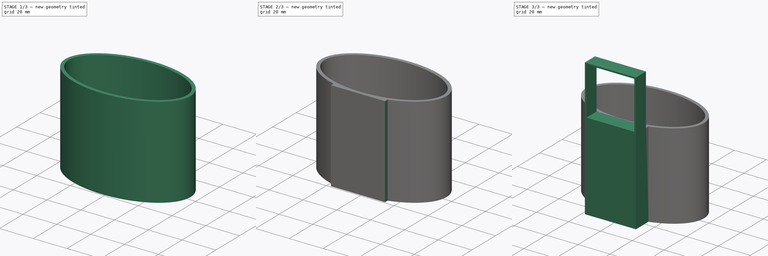
[diagram: build sequence overview — one tinted view per stage of 3, left to right]
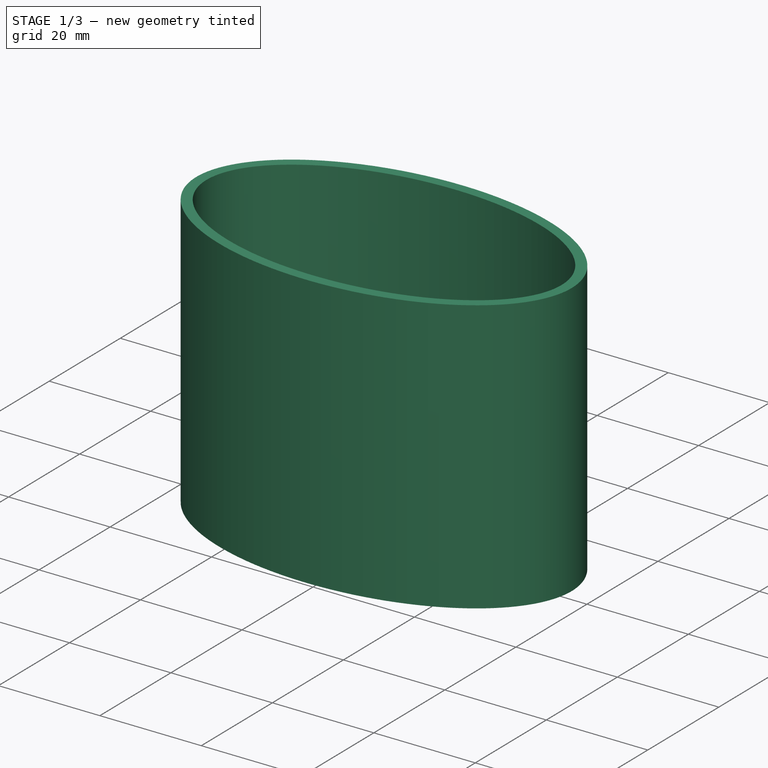
[diagram: stage 1 of 3 — iso view after this stage's code; geometry added in this stage tinted green]
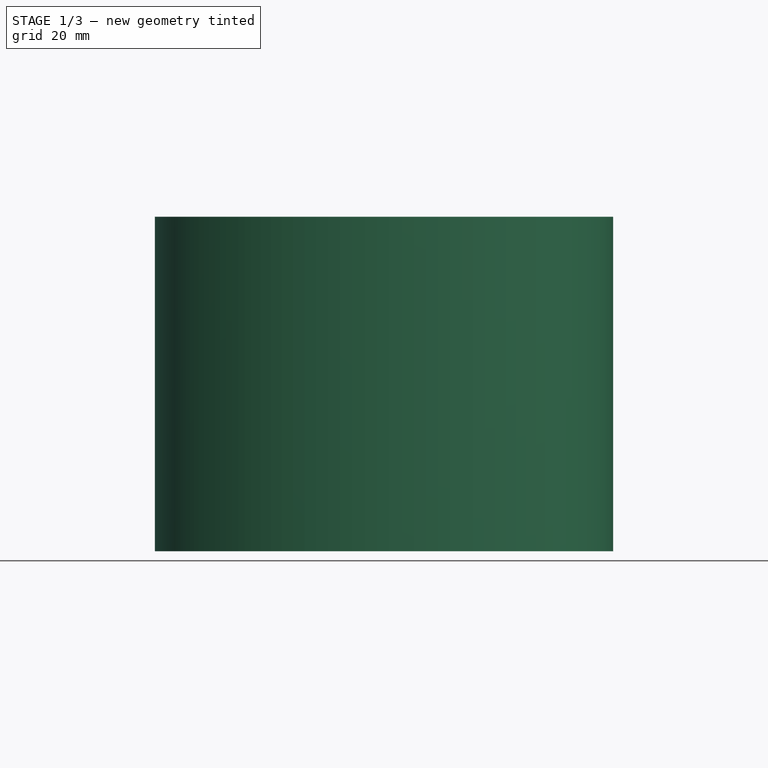
[diagram: stage 1 of 3 — front view after this stage's code; geometry added in this stage tinted green]
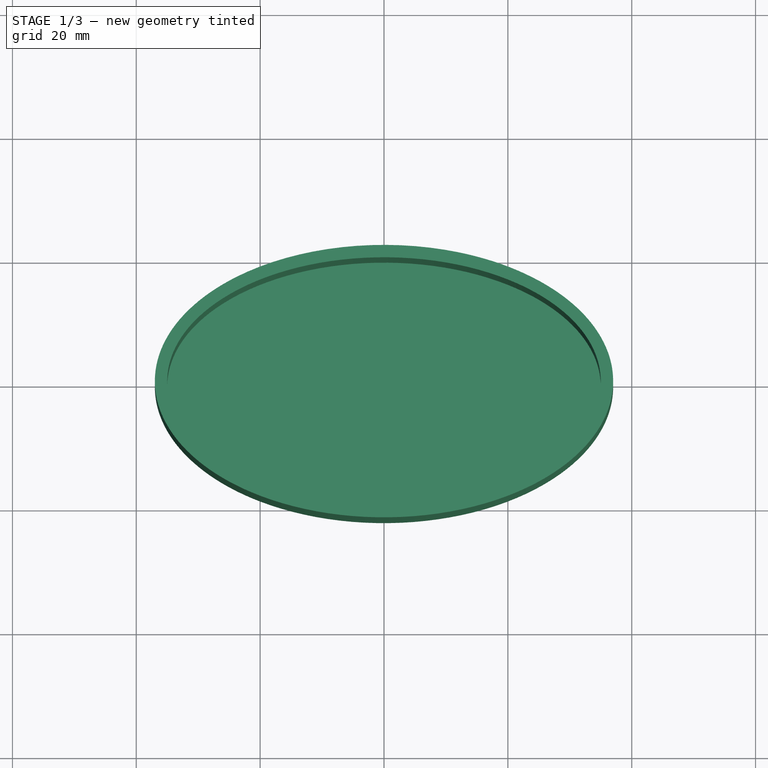
[diagram: stage 1 of 3 — top view after this stage's code; geometry added in this stage tinted green]
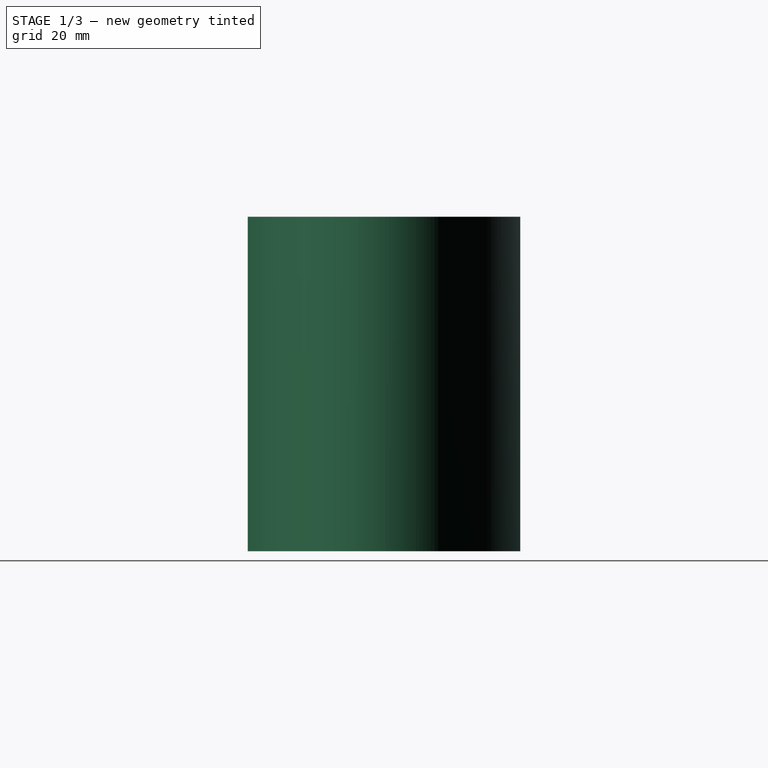
[diagram: stage 1 of 3 — right view after this stage's code; geometry added in this stage tinted green]
FCSTD DOCUMENT  (FreeCAD 1.0R39109 (Git))
Label: 01_Body
License: All rights reserved
LicenseURL: https://en.wikipedia.org/wiki/All_rights_reserved
objects: Sketcher::SketchObject×5, PartDesign::Pad×4, PartDesign::Pocket×1, PartDesign::Body×1
note: 26 computed .brp shape members not serialized (recipe doc carries the construction recipe); baked Part::Feature solids carry a one-line shape summary decoded from their .brp

FEATURE [Sketcher::SketchObject] Sketch
  ArcFitTolerance = 1e-06
  AttachmentSupport = -> [XY_Plane]
  FullyConstrained = true
  MakeInternals = false
  MapMode = 5
  sketch-geometry (5):
    g0: Ellipse CenterX=0 CenterY=0 CenterZ=0 NormalX=0 NormalY=0 NormalZ=1 MajorRadius=37 MinorRadius=22 AngleXU=-3.14159
    g1: LineSegment [constr] StartX=-37 StartY=0 StartZ=0 EndX=37 EndY=0 EndZ=0
    g2: LineSegment [constr] StartX=0 StartY=-22 StartZ=0 EndX=0 EndY=22 EndZ=0
    g3: GeomPoint [constr] X=-29.7489 Y=0 Z=0
    g4: GeomPoint [constr] X=29.7489 Y=0 Z=0
  constraints (5):
    c: InternalAlignment(g1-g4 -> g0) x4
    c: Distance(g0,g1) = 37
    c: Angle(g1) = 0
    c: Distance(g0,g2) = 22
    c: Coincident(g0,g-1)
FEATURE [PartDesign::Pad] Pad
  Direction = (0,0,1)
  Length = 4
  Length2 = 10
  Profile = -> Sketch
  ReferenceAxis = -> Sketch [N_Axis]
  Refine = true
  Suppressed = false
  Type = 0
FEATURE [Sketcher::SketchObject] Sketch001
  ArcFitTolerance = 1e-06
  AttachmentSupport = -> [Pad]
  FullyConstrained = true
  MakeInternals = false
  MapMode = 5
  Placement = pos=(0,0,4) rot=(0,0,1;0rad)
  sketch-geometry (10):
    g0: Ellipse CenterX=0 CenterY=0 CenterZ=0 NormalX=0 NormalY=0 NormalZ=1 MajorRadius=37 MinorRadius=22 AngleXU=-3.14159
    g1: LineSegment [constr] StartX=-37 StartY=-2.21568e-10 StartZ=0 EndX=37 EndY=2.21568e-10 EndZ=0
    g2: LineSegment [constr] StartX=1.31791e-10 StartY=-22 StartZ=0 EndX=-1.31791e-10 EndY=22 EndZ=0
    g3: GeomPoint [constr] X=-29.7489 Y=-1.78179e-10 Z=0
    g4: GeomPoint [constr] X=29.7489 Y=1.78211e-10 Z=0
    g5: Ellipse CenterX=0 CenterY=0 CenterZ=0 NormalX=0 NormalY=0 NormalZ=1 MajorRadius=35 MinorRadius=20 AngleXU=3.14159
    g6: LineSegment [constr] StartX=-35 StartY=1.974e-13 StartZ=0 EndX=35 EndY=-1.974e-13 EndZ=0
    g7: LineSegment [constr] StartX=-1.128e-13 StartY=-20 StartZ=0 EndX=1.128e-13 EndY=20 EndZ=0
    g8: GeomPoint [constr] X=-28.7228 Y=1.62e-13 Z=0
    g9: GeomPoint [constr] X=28.7228 Y=-1.621e-13 Z=0
  constraints (10):
    c: InternalAlignment(g1-g4 -> g0) x4
    c: Distance(g0,g1) = 37
    c: Angle(g1) = 0
    c: Distance(g0,g2) = 22
    c: Coincident(g0,g-1)
    c: InternalAlignment(g6-g9 -> g5) x4
    c: Distance(g5,g6) = 35
    c: Angle(g6) = 0
    c: Distance(g5,g7) = 20
    c: Coincident(g5,g0)
FEATURE [PartDesign::Pad] Pad001
  BaseFeature = -> Pad
  Direction = (0,0,1)
  Length = 50
  Length2 = 10
  Profile = -> Sketch001
  ReferenceAxis = -> Sketch001 [N_Axis]
  Refine = true
  Suppressed = false
  Type = 0
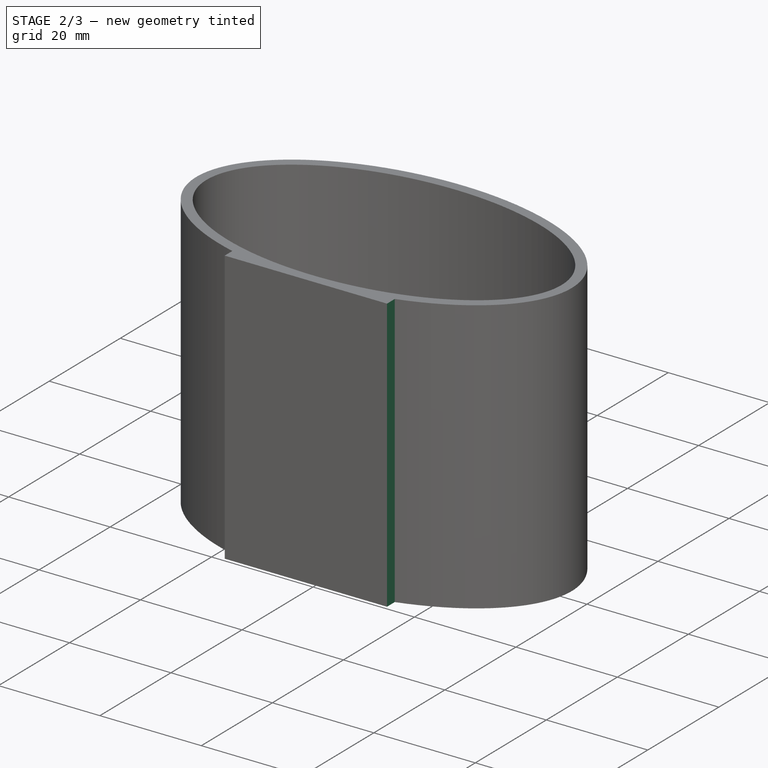
[diagram: stage 2 of 3 — iso view after this stage's code; geometry added in this stage tinted green]
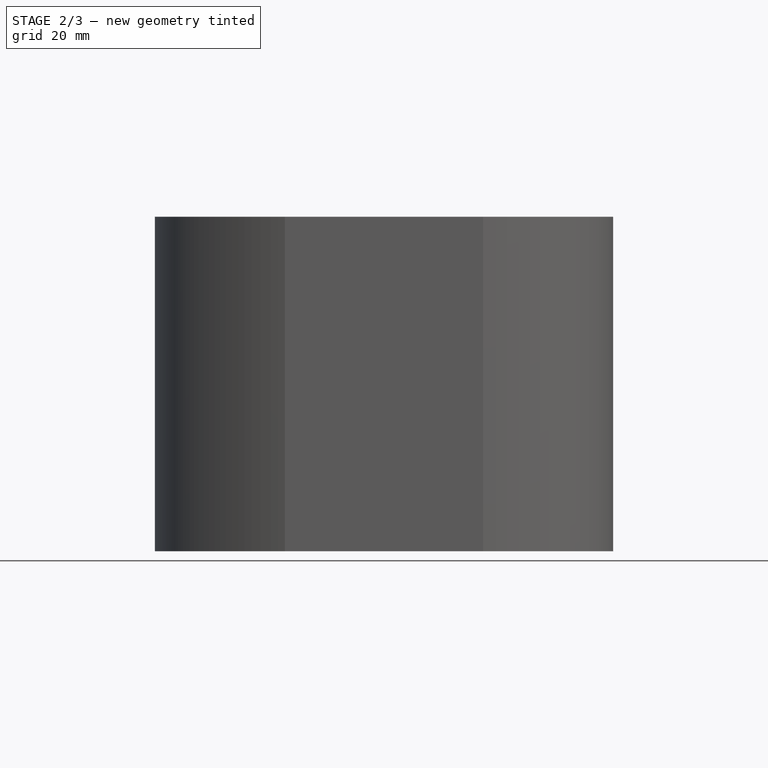
[diagram: stage 2 of 3 — front view after this stage's code; geometry added in this stage tinted green]
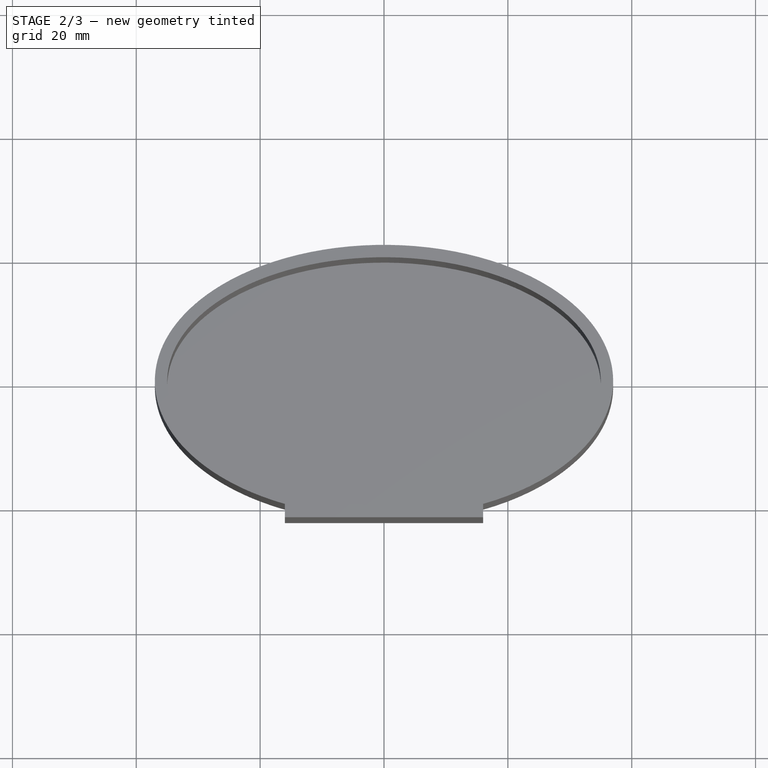
[diagram: stage 2 of 3 — top view after this stage's code; geometry added in this stage tinted green]
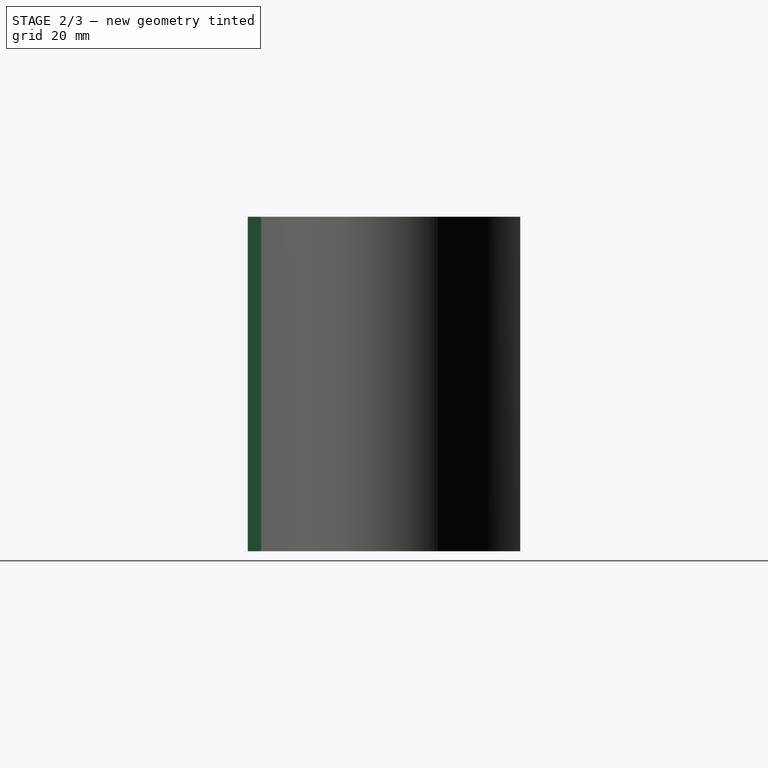
[diagram: stage 2 of 3 — right view after this stage's code; geometry added in this stage tinted green]
FEATURE [Sketcher::SketchObject] Sketch002
  ArcFitTolerance = 1e-06
  AttachmentSupport = -> [Pad001]
  FullyConstrained = true
  MakeInternals = false
  MapMode = 5
  Placement = pos=(0,0,0) rot=(1,0,0;3.14159rad)
  sketch-geometry (8):
    g0: LineSegment StartX=-16 StartY=22 StartZ=0 EndX=16 EndY=22 EndZ=0
    g1: ArcOfEllipse CenterX=0 CenterY=0 CenterZ=0 NormalX=0 NormalY=0 NormalZ=1 MajorRadius=37 MinorRadius=22 AngleXU=-3.14159 StartAngle=4.2652 EndAngle=5.15958
    g2: LineSegment [constr] StartX=-37 StartY=-1.8e-15 StartZ=0 EndX=37 EndY=1.8e-15 EndZ=0
    g3: LineSegment [constr] StartX=1.1e-15 StartY=-22 StartZ=0 EndX=-1.1e-15 EndY=22 EndZ=0
    g4: GeomPoint [constr] X=-29.7489 Y=-1.5e-15 Z=0
    g5: GeomPoint [constr] X=29.7489 Y=1.5e-15 Z=0
    g6: LineSegment StartX=-16 StartY=22 StartZ=0 EndX=-16 EndY=19.8367 EndZ=0
    g7: LineSegment StartX=16 StartY=22 StartZ=0 EndX=16 EndY=19.8367 EndZ=0
  constraints (15):
    c: Distance(g0) = 32
    c: Horizontal(g0)
    c: DistanceY(g-1,g0) = 22
    c: DistanceX(g0,g-1) = 16
    c: InternalAlignment(g2-g5 -> g1) x4
    c: Coincident(g1,g-1)
    c: Coincident(g6,g0)
    c: Coincident(g6,g1)
    c: Vertical(g6)
    c: Coincident(g7,g0)
    c: Coincident(g7,g1)
    c: Vertical(g7)
    c: DistanceX(g2,g1) = 37
    c: DistanceY(g1,g3) = 22
    c: Angle(g2,g-1) = 0
FEATURE [PartDesign::Pad] Pad002
  BaseFeature = -> Pad001
  Direction = (0,0,-1)
  Length = 54
  Length2 = 10
  Profile = -> Sketch002
  ReferenceAxis = -> Sketch002 [N_Axis]
  Refine = true
  Reversed = true
  Suppressed = false
  Type = 0
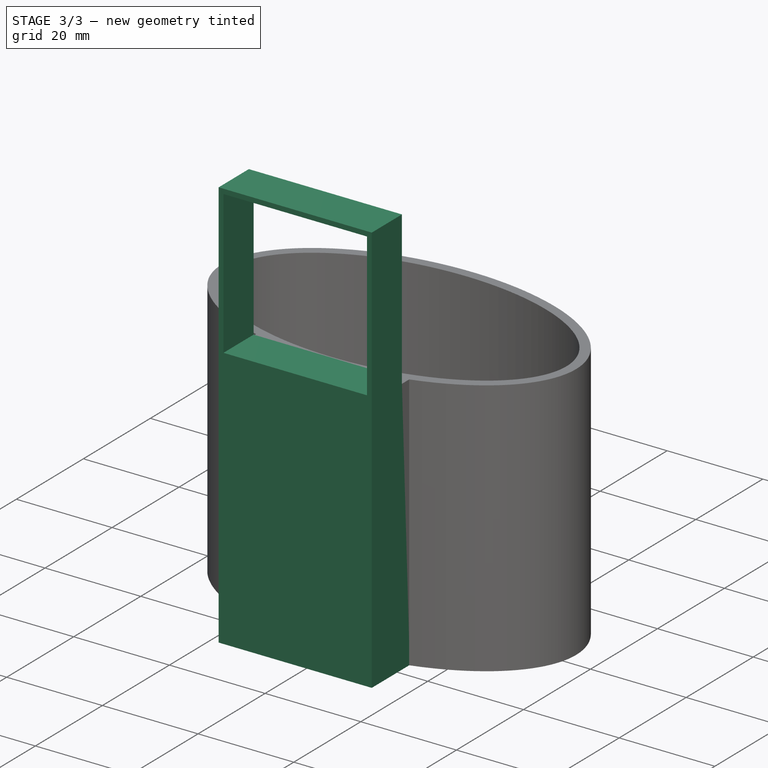
[diagram: stage 3 of 3 — iso view after this stage's code; geometry added in this stage tinted green]
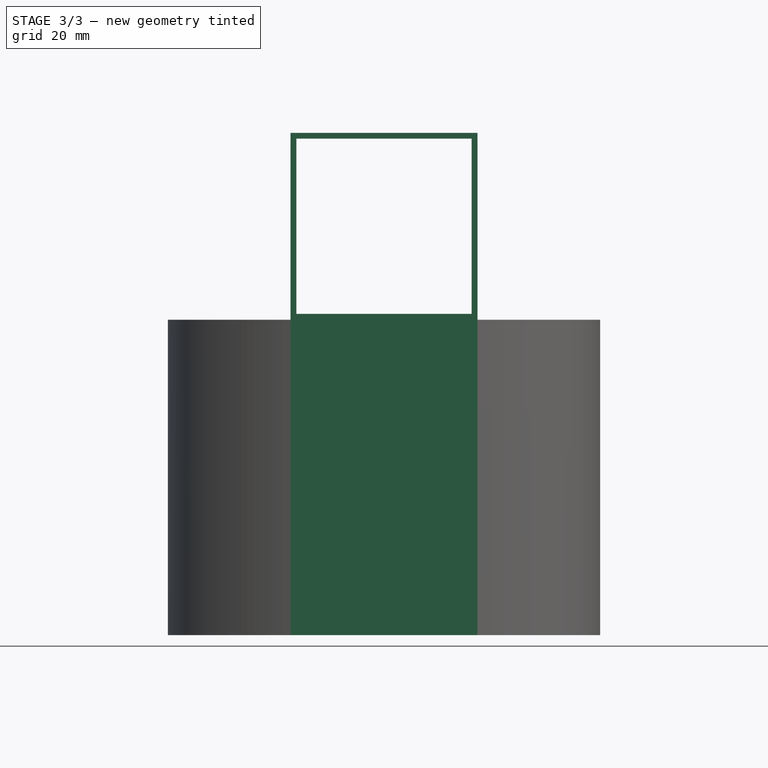
[diagram: stage 3 of 3 — front view after this stage's code; geometry added in this stage tinted green]
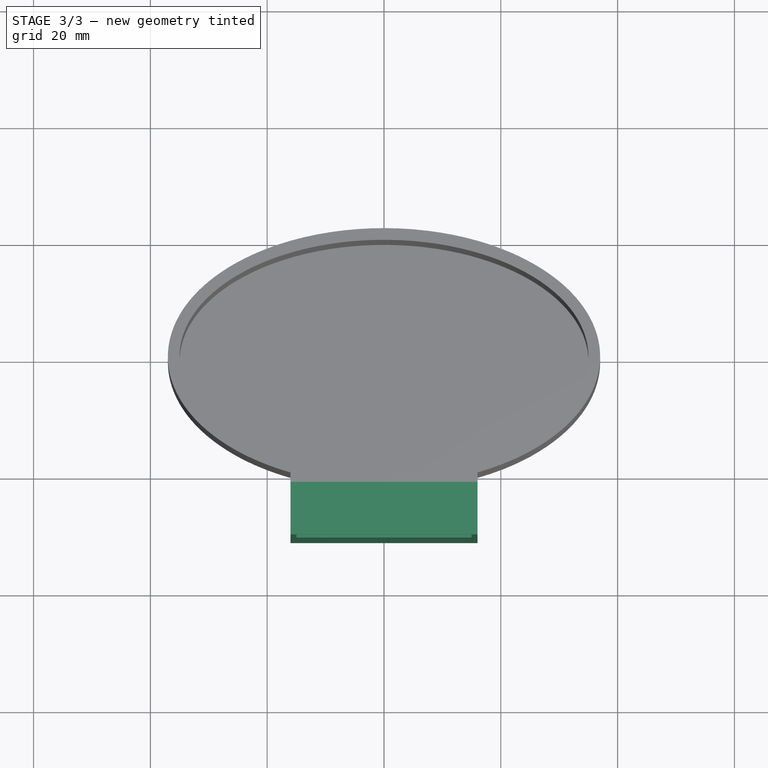
[diagram: stage 3 of 3 — top view after this stage's code; geometry added in this stage tinted green]
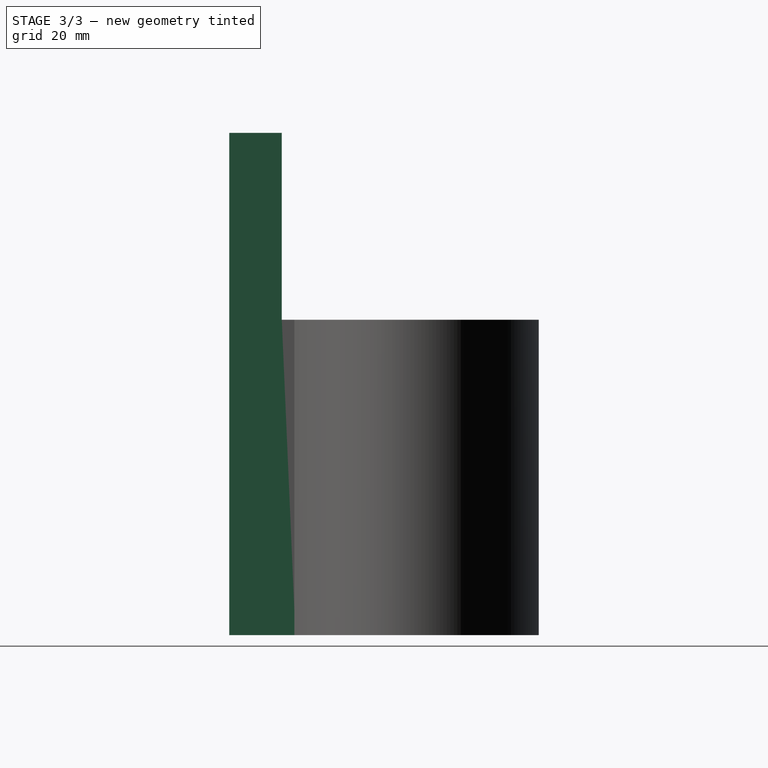
[diagram: stage 3 of 3 — right view after this stage's code; geometry added in this stage tinted green]
FEATURE [Sketcher::SketchObject] Sketch003
  ArcFitTolerance = 1e-06
  AttachmentSupport = -> [Pad002]
  FullyConstrained = true
  MakeInternals = false
  MapMode = 5
  Placement = pos=(0,0,0) rot=(1,0,0;3.14159rad)
  sketch-geometry (4):
    g0: LineSegment StartX=-16 StartY=22 StartZ=0 EndX=16 EndY=22 EndZ=0
    g1: LineSegment StartX=16 StartY=22 StartZ=0 EndX=16 EndY=31 EndZ=0
    g2: LineSegment StartX=16 StartY=31 StartZ=0 EndX=-16 EndY=31 EndZ=0
    g3: LineSegment StartX=-16 StartY=31 StartZ=0 EndX=-16 EndY=22 EndZ=0
  constraints (12):
    c: Distance(g0) = 32
    c: Horizontal(g0)
    c: Distance(g1) = 9
    c: Vertical(g1)
    c: Coincident(g1,g0)
    c: Distance(g2) = 32
    c: Horizontal(g2)
    c: Coincident(g2,g1)
    c: Coincident(g3,g2)
    c: Coincident(g3,g0)
    c: DistanceY(g-1,g0) = 22
    c: DistanceX(g0,g-1) = 16
FEATURE [PartDesign::Pad] Pad003
  BaseFeature = -> Pad002
  Direction = (0,0,-1)
  Length = 86
  Length2 = 10
  Profile = -> Sketch003
  ReferenceAxis = -> Sketch003 [N_Axis]
  Refine = true
  Reversed = true
  Suppressed = false
  Type = 0
FEATURE [Sketcher::SketchObject] Sketch004
  ArcFitTolerance = 1e-06
  AttachmentSupport = -> [Pad003]
  FullyConstrained = true
  MakeInternals = false
  MapMode = 5
  Placement = pos=(0,-22,0) rot=(0,0.707107,0.707107;3.14159rad)
  sketch-geometry (4):
    g0: LineSegment StartX=-15 StartY=85 StartZ=0 EndX=-15 EndY=55 EndZ=0
    g1: LineSegment StartX=-15 StartY=55 StartZ=0 EndX=15 EndY=55 EndZ=0
    g2: LineSegment StartX=15 StartY=55 StartZ=0 EndX=15 EndY=85 EndZ=0
    g3: LineSegment StartX=15 StartY=85 StartZ=0 EndX=-15 EndY=85 EndZ=0
  constraints (12):
    c: Coincident(g0,g1)
    c: Coincident(g1,g2)
    c: Coincident(g2,g3)
    c: Coincident(g3,g0)
    c: Vertical(g0)
    c: Vertical(g2)
    c: Horizontal(g1)
    c: Horizontal(g3)
    c: Distance(g0,g2) = 30
    c: Distance(g1,g3) = 30
    c: DistanceX(g0,g-1) = 15
    c: DistanceY(g-1,g0) = 55
FEATURE [PartDesign::Pocket] Pocket
  BaseFeature = -> Pad003
  Direction = (0,-1,2e-16)
  Length = 9
  Length2 = 5
  Profile = -> Sketch004
  ReferenceAxis = -> Sketch004 [N_Axis]
  Refine = true
  Suppressed = false
  Type = 0
FEATURE [PartDesign::Body] Body
  AllowCompound = false
  Group = -> [Sketch,Pad,Sketch001,Pad001,Sketch002,Pad002,Sketch003,Pad003,Sketch004,Pocket]
  Origin = -> Origin
  Tip = -> Pocket
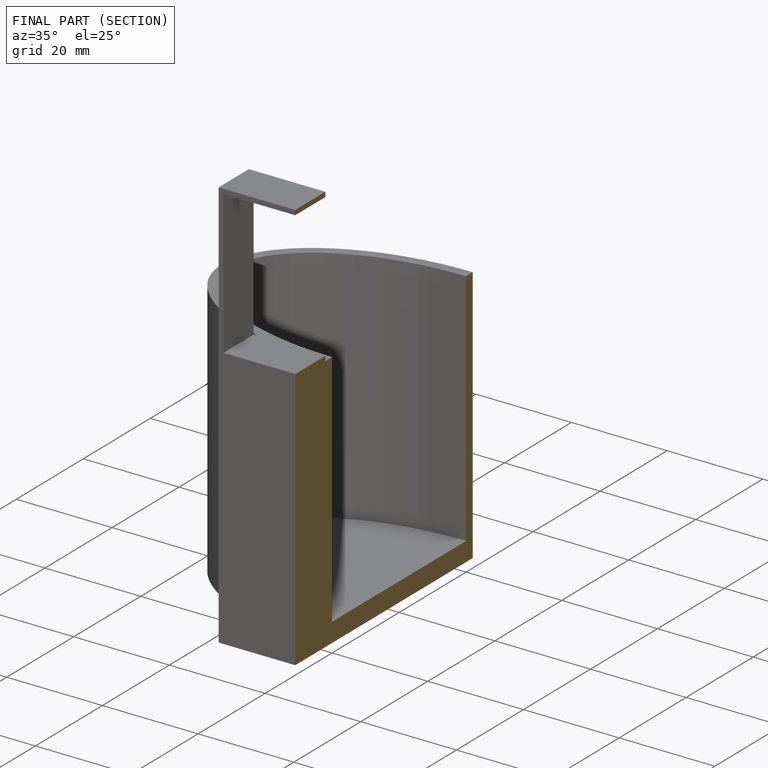
[diagram: finished part — half-section view (interior)]
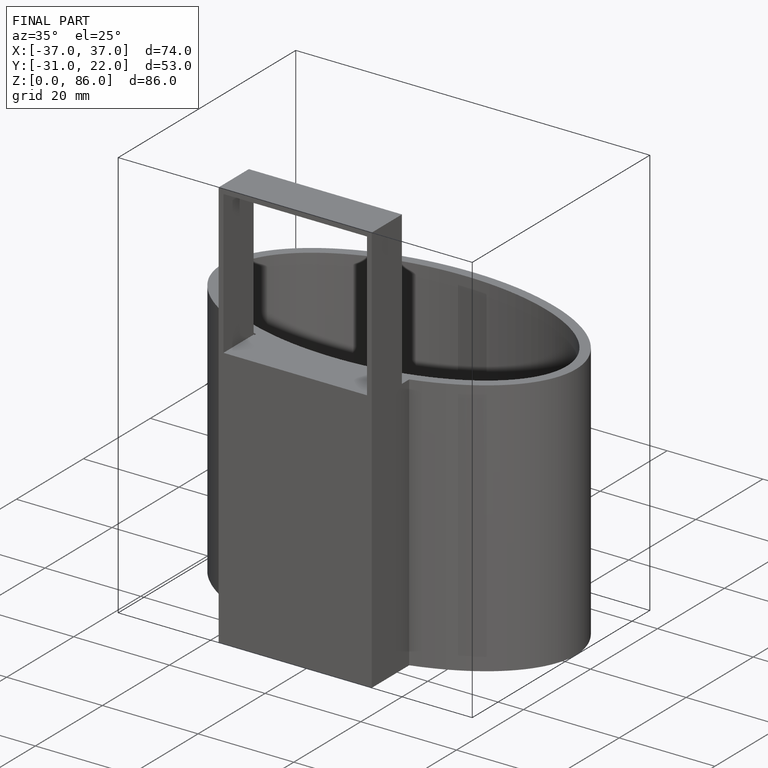
[diagram: finished part — iso view with bounding-box wireframe]
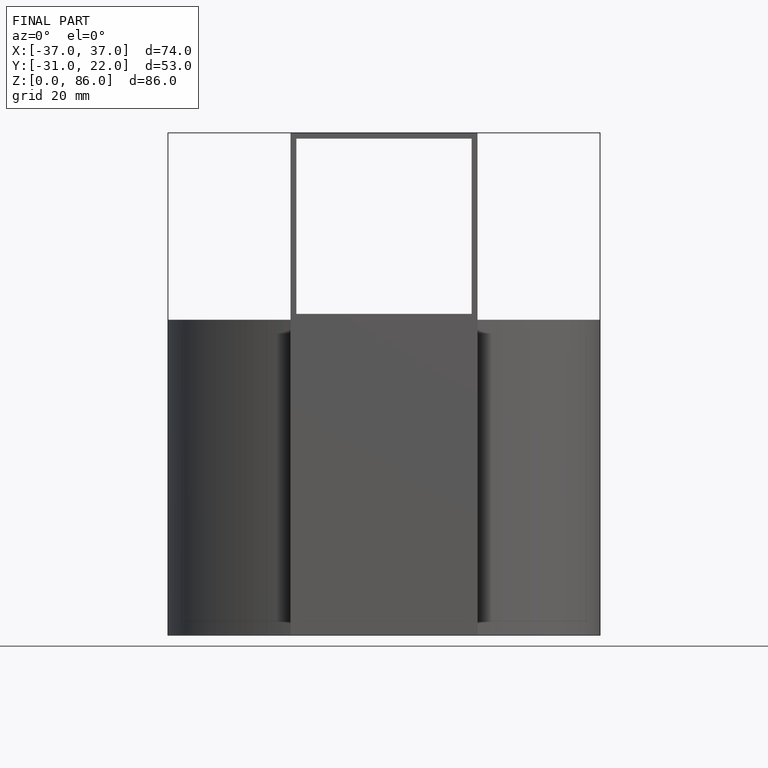
[diagram: finished part — front view with bounding-box wireframe]
